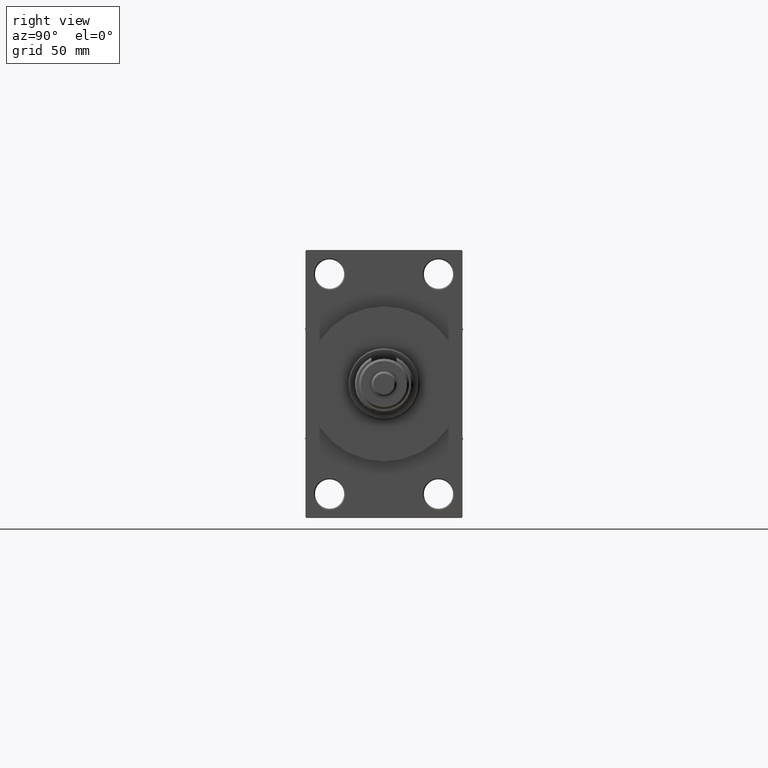
[diagram: clean part render]
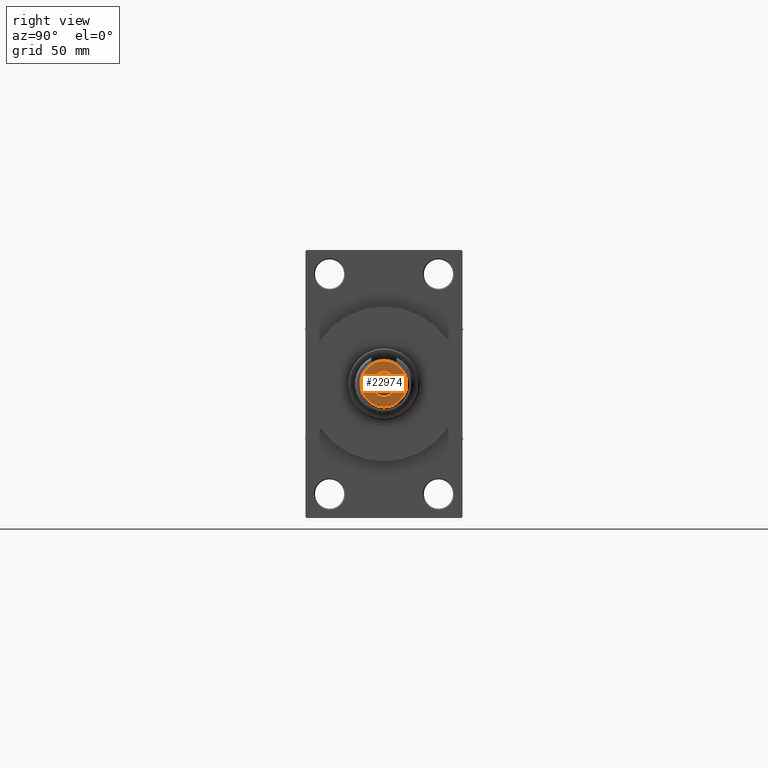
[diagram: same view with one face highlighted and labeled with its STEP entity id]
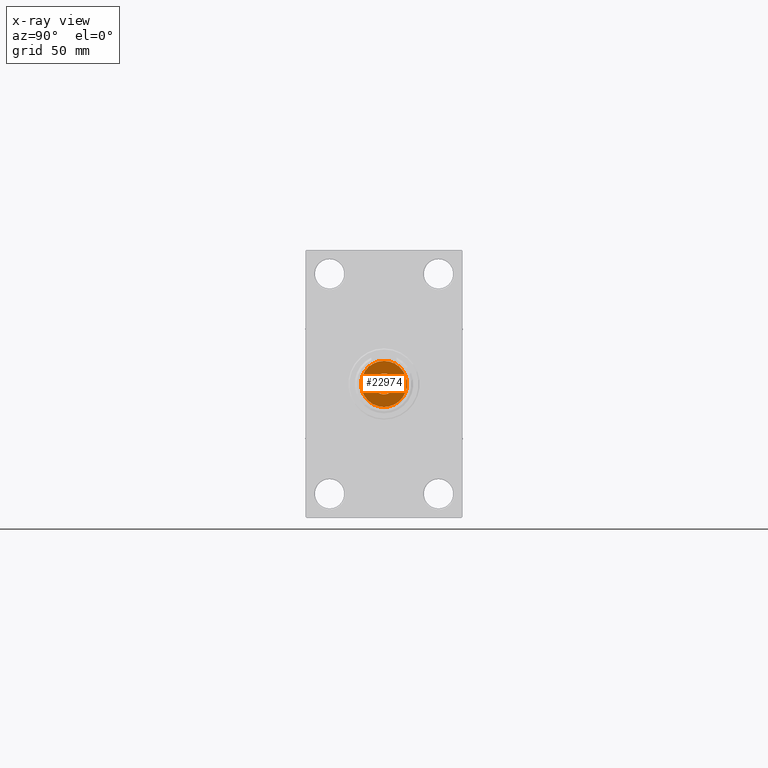
[diagram: x-ray of the same camera — body ghosted, the highlighted face saturated]
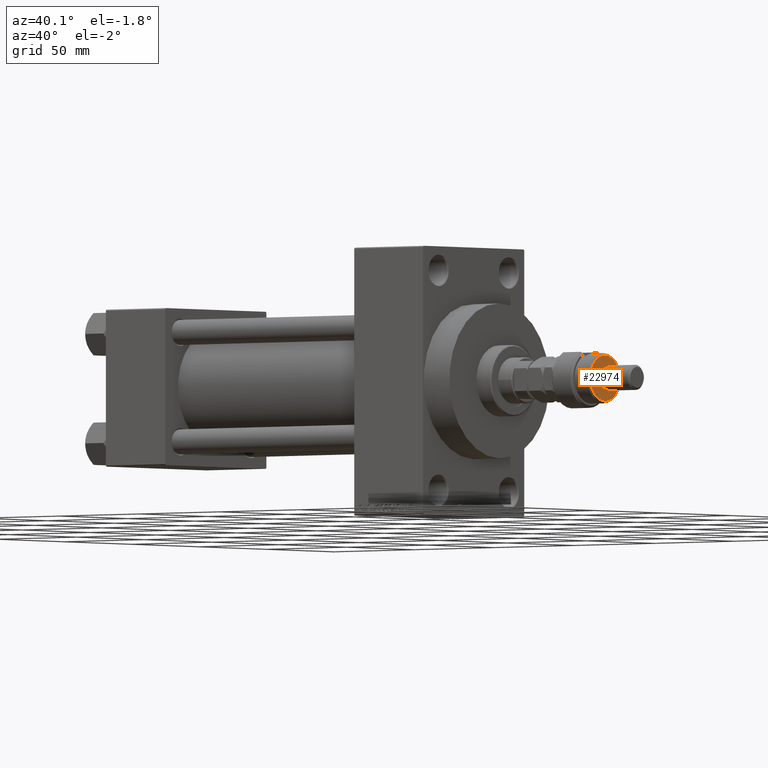
[diagram: same view with one face highlighted and labeled with its STEP entity id]
A machine part, right view. The second image highlights one B-rep face of the part: STEP entity #22974.
The next image is the same camera in x-ray: the body ghosted, the highlighted face saturated — about 0% of this face is hidden behind the body in this view.
A second angle (auxiliary view) of the same face is appended — the face is thin or edge-on in the first view.
In plain terms, the highlighted planar face has unit normal (1, 0, 0).
Its self-contained STEP definition (entity closure, byte-faithful):
#1084 = VERTEX_POINT ( 'NONE', #12725 ) ;
#1771 = CIRCLE ( 'NONE', #27635, 10.99999999999999645 ) ;
#1835 = VERTEX_POINT ( 'NONE', #4530 ) ;
#2131 = CARTESIAN_POINT ( 'NONE',  ( 0.000000000000000000, 0.000000000000000000, 22.00000000000000000 ) ) ;
#3833 = EDGE_LOOP ( 'NONE', ( #35242, #30592 ) ) ;
#4530 = CARTESIAN_POINT ( 'NONE',  ( -5.000000000000000000, 0.000000000000000000, 22.00000000000000000 ) ) ;
#4615 = ORIENTED_EDGE ( 'NONE', *, *, #28108, .T. ) ;
#4656 = EDGE_CURVE ( 'NONE', #1084, #1835, #6199, .T. ) ;
#6199 = CIRCLE ( 'NONE', #29635, 5.000000000000000000 ) ;
#6901 = DIRECTION ( 'NONE',  ( 0.000000000000000000, 0.000000000000000000, 1.000000000000000000 ) ) ;
#7848 = DIRECTION ( 'NONE',  ( 1.000000000000000000, 0.000000000000000000, -0.000000000000000000 ) ) ;
#10609 = AXIS2_PLACEMENT_3D ( 'NONE', #34015, #49935, #41838 ) ;
#10683 = CARTESIAN_POINT ( 'NONE',  ( -10.99999999999999645, 0.000000000000000000, 22.00000000000000000 ) ) ;
#11384 = CARTESIAN_POINT ( 'NONE',  ( 0.000000000000000000, 0.000000000000000000, 22.00000000000000000 ) ) ;
#12725 = CARTESIAN_POINT ( 'NONE',  ( 5.000000000000000000, 6.123233995736766282E-16, 22.00000000000000000 ) ) ;
#13839 = CIRCLE ( 'NONE', #10609, 5.000000000000000000 ) ;
#14764 = VERTEX_POINT ( 'NONE', #10683 ) ;
#15166 = EDGE_LOOP ( 'NONE', ( #4615, #15818 ) ) ;
#15169 = DIRECTION ( 'NONE',  ( 1.000000000000000000, 0.000000000000000000, 0.000000000000000000 ) ) ;
#15187 = FACE_OUTER_BOUND ( 'NONE', #15166, .T. ) ;
#15686 = PLANE ( 'NONE',  #39540 ) ;
#15818 = ORIENTED_EDGE ( 'NONE', *, *, #25068, .T. ) ;
#18905 = EDGE_CURVE ( 'NONE', #1835, #1084, #13839, .T. ) ;
#21078 = CIRCLE ( 'NONE', #24287, 10.99999999999999645 ) ;
#22340 = DIRECTION ( 'NONE',  ( 1.000000000000000000, 0.000000000000000000, 0.000000000000000000 ) ) ;
#22825 = CARTESIAN_POINT ( 'NONE',  ( 0.000000000000000000, 0.000000000000000000, 22.00000000000000000 ) ) ;
#22974 = ADVANCED_FACE ( 'NONE', ( #15187, #46026 ), #15686, .T. ) ;
#24287 = AXIS2_PLACEMENT_3D ( 'NONE', #22825, #6901, #22340 ) ;
#25068 = EDGE_CURVE ( 'NONE', #33549, #14764, #21078, .T. ) ;
#26330 = DIRECTION ( 'NONE',  ( 0.000000000000000000, 0.000000000000000000, 1.000000000000000000 ) ) ;
#27635 = AXIS2_PLACEMENT_3D ( 'NONE', #2131, #47662, #28454 ) ;
#28108 = EDGE_CURVE ( 'NONE', #14764, #33549, #1771, .T. ) ;
#28454 = DIRECTION ( 'NONE',  ( 1.000000000000000000, 0.000000000000000000, 0.000000000000000000 ) ) ;
#29635 = AXIS2_PLACEMENT_3D ( 'NONE', #49087, #49815, #15169 ) ;
#30592 = ORIENTED_EDGE ( 'NONE', *, *, #4656, .F. ) ;
#33549 = VERTEX_POINT ( 'NONE', #44456 ) ;
#34015 = CARTESIAN_POINT ( 'NONE',  ( 0.000000000000000000, 0.000000000000000000, 22.00000000000000000 ) ) ;
#35242 = ORIENTED_EDGE ( 'NONE', *, *, #18905, .F. ) ;
#39540 = AXIS2_PLACEMENT_3D ( 'NONE', #11384, #26330, #7848 ) ;
#41838 = DIRECTION ( 'NONE',  ( 1.000000000000000000, 0.000000000000000000, 0.000000000000000000 ) ) ;
#44456 = CARTESIAN_POINT ( 'NONE',  ( 10.99999999999999645, 1.408343819019456176E-15, 22.00000000000000000 ) ) ;
#46026 = FACE_BOUND ( 'NONE', #3833, .T. ) ;
#47662 = DIRECTION ( 'NONE',  ( 0.000000000000000000, 0.000000000000000000, 1.000000000000000000 ) ) ;
#49087 = CARTESIAN_POINT ( 'NONE',  ( 0.000000000000000000, 0.000000000000000000, 22.00000000000000000 ) ) ;
#49815 = DIRECTION ( 'NONE',  ( 0.000000000000000000, 0.000000000000000000, 1.000000000000000000 ) ) ;
#49935 = DIRECTION ( 'NONE',  ( 0.000000000000000000, 0.000000000000000000, 1.000000000000000000 ) ) ;